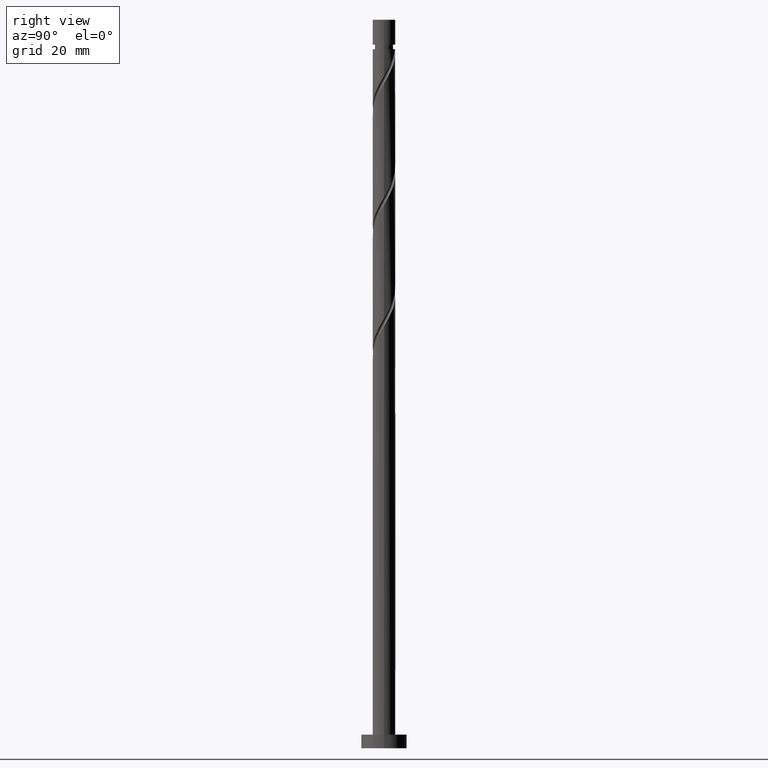
[diagram: clean part render]
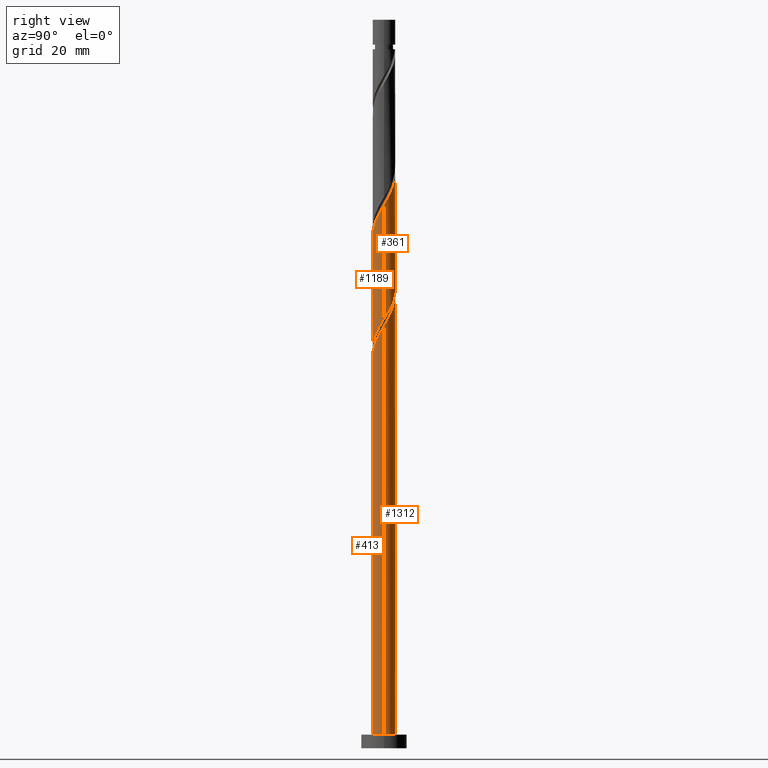
[diagram: same view with one multi-face feature highlighted, each face labeled with its STEP entity id]
A machine part, right view. The highlighted faces form ONE feature: a constant-radius fillet chain: 4 tangent blend faces with common blend radius 2.5 mm. The faces share edges in the B-rep.
Their STEP definitions:
[1] entity #361 (Cylinder):
#20 = CARTESIAN_POINT ( 'NONE',  ( 0.9060516544719215970, 2.330036566114083829, 124.4244054208200083 ) ) ;
#26 = LINE ( 'NONE', #1440, #511 ) ;
#82 = ORIENTED_EDGE ( 'NONE', *, *, #579, .F. ) ;
#108 = CARTESIAN_POINT ( 'NONE',  ( -1.525797355502942487, 1.980389464206529837, 103.8183448147593850 ) ) ;
#109 =( BOUNDED_CURVE ( )  B_SPLINE_CURVE ( 2, ( #530, #418, #1043, #177, #153, #277, #1210, #1049, #1078, #1591, #20, #650, #1565, #918, #795, #779, #1301, #1559, #452, #663, #926, #1066, #1441, #1317, #540 ),
 .UNSPECIFIED., .F., .T. ) 
 B_SPLINE_CURVE_WITH_KNOTS ( ( 3, 2, 2, 2, 2, 2, 2, 2, 2, 2, 2, 2, 3 ),
 ( 0.4295252162417508845, 0.4318181818181817677, 0.4431818181818182323, 0.4545454545454545858, 0.4659090909090909394, 0.4772727272727272929, 0.4886363636363636465, 0.5000000000000000000, 0.5113636363636363535, 0.5227272727272727071, 0.5340909090909091717, 0.5454545454545454142, 0.5545252162417514397 ),
 .UNSPECIFIED. ) 
 CURVE ( )  GEOMETRIC_REPRESENTATION_ITEM ( )  RATIONAL_B_SPLINE_CURVE ( ( 0.9061101570135661198, 0.9072237824201483392, 0.9090909090909261581, 0.8998376744372282854, 0.9090909090909261581, 0.8998376744372282854, 0.9090909090909261581, 0.8998376744372282854, 0.9090909090909261581, 0.8998376744372282854, 0.9090909090909261581, 0.8998376744372282854, 0.9090909090909261581, 0.8998376744372282854, 0.9090909090909261581, 0.8998376744372282854, 0.9090909090909261581, 0.8998376744372282854, 0.9090909090909261581, 0.8998376744372282854, 0.9090909090909261581, 0.8998376744372282854, 0.9090909090909261581, 0.9017048011080057712, 0.9061101570135666750 ) ) 
 REPRESENTATION_ITEM ( '' )  );
#134 = CARTESIAN_POINT ( 'NONE',  ( 2.435264748179749805, 0.5652305779706334743, 95.33349632991091482 ) ) ;
#140 = CARTESIAN_POINT ( 'NONE',  ( 0.8497505388409958282, 2.378471201873189500, 99.57592057233514993 ) ) ;
#153 = CARTESIAN_POINT ( 'NONE',  ( 2.354261794510399408, 0.8411013035946938166, 120.7880417844563254 ) ) ;
#177 = CARTESIAN_POINT ( 'NONE',  ( 2.475193905018193252, 0.5026095591624444303, 120.1819811783957732 ) ) ;
#226 = LINE ( 'NONE', #1497, #945 ) ;
#249 = CARTESIAN_POINT ( 'NONE',  ( 1.485422444420509969, 2.042724014156697798, 98.36379936021393178 ) ) ;
#259 = ORIENTED_EDGE ( 'NONE', *, *, #1263, .F. ) ;
#277 = CARTESIAN_POINT ( 'NONE',  ( 2.233329684002607785, 1.179593048026943647, 121.3941023905169772 ) ) ;
#348 = CARTESIAN_POINT ( 'NONE',  ( 0.000000000000000000, 0.000000000000000000, 160.0000000000000000 ) ) ;
#361 = ADVANCED_FACE ( 'NONE', ( #592 ), #960, .T. ) ;
#363 = CARTESIAN_POINT ( 'NONE',  ( 2.353996859965339361, 0.9153687888900159386, 95.93955693597150969 ) ) ;
#381 = CARTESIAN_POINT ( 'NONE',  ( -1.241060336893708760, 2.199766004962784738, 103.2122842086987902 ) ) ;
#418 = CARTESIAN_POINT ( 'NONE',  ( 2.500000000000003997, 0.07193881630954307438, 119.4546247038130531 ) ) ;
#428 = CARTESIAN_POINT ( 'NONE',  ( 2.500000000000000444, -3.155889168437744836E-15, 94.36476899103000449 ) ) ;
#452 = CARTESIAN_POINT ( 'NONE',  ( -1.743088351060510188, 1.792105744758709873, 129.2728902693048667 ) ) ;
#481 = CARTESIAN_POINT ( 'NONE',  ( 0.1452368982656260243, 2.521528798126809967, 100.7880417844563539 ) ) ;
#488 = CARTESIAN_POINT ( 'NONE',  ( -2.475193905018187035, 0.5026095591624444303, 106.8486478450624162 ) ) ;
#505 = CARTESIAN_POINT ( 'NONE',  ( 2.499999999999999556, 0.2863223184628082008, 94.85072894400131815 ) ) ;
#511 = VECTOR ( 'NONE', #1191, 1000.000000000000000 ) ;
#527 = CARTESIAN_POINT ( 'NONE',  ( -2.500000000000003997, -1.936908281102772785E-15, 132.6658600324281849 ) ) ;
#528 = EDGE_CURVE ( 'NONE', #1176, #1611, #1142, .T. ) ;
#530 = CARTESIAN_POINT ( 'NONE',  ( 2.500000000000003997, 1.839688946530046523E-15, 119.3325266990948705 ) ) ;
#540 = CARTESIAN_POINT ( 'NONE',  ( -2.500000000000004441, -1.936908281102772785E-15, 132.6658600324281849 ) ) ;
#579 = EDGE_CURVE ( 'NONE', #1287, #1031, #109, .T. ) ;
#592 = FACE_OUTER_BOUND ( 'NONE', #613, .T. ) ;
#613 = EDGE_LOOP ( 'NONE', ( #82, #769, #774, #259 ) ) ;
#618 = AXIS2_PLACEMENT_3D ( 'NONE', #348, #1362, #1253 ) ;
#650 = CARTESIAN_POINT ( 'NONE',  ( 0.5710429720501333239, 2.460307127265380256, 125.0304660268806174 ) ) ;
#663 = CARTESIAN_POINT ( 'NONE',  ( -2.000754257700509076, 1.541487475360719062, 129.8789508753654331 ) ) ;
#743 = CARTESIAN_POINT ( 'NONE',  ( -2.354261794510395411, 0.8411013035946935945, 106.2425872390018071 ) ) ;
#753 = CARTESIAN_POINT ( 'NONE',  ( 1.743088351060507524, 1.792105744758707209, 97.75773875415333691 ) ) ;
#764 = CARTESIAN_POINT ( 'NONE',  ( -0.5710429720501314366, 2.460307127265375371, 102.0001629965775578 ) ) ;
#769 = ORIENTED_EDGE ( 'NONE', *, *, #780, .T. ) ;
#771 = CARTESIAN_POINT ( 'NONE',  ( 2.500000000000003997, 1.839688946530046523E-15, 119.3325266990948705 ) ) ;
#772 = CARTESIAN_POINT ( 'NONE',  ( -2.500000000000000000, 9.587322070941203532E-15, 107.6981023243632904 ) ) ;
#774 = ORIENTED_EDGE ( 'NONE', *, *, #528, .F. ) ;
#779 = CARTESIAN_POINT ( 'NONE',  ( -0.8497505388409964944, 2.378471201873193941, 127.4547084511230537 ) ) ;
#780 = EDGE_CURVE ( 'NONE', #1287, #1611, #226, .T. ) ;
#795 = CARTESIAN_POINT ( 'NONE',  ( -0.4974937185533103712, 2.450000000000004174, 126.8486478450624162 ) ) ;
#902 = CARTESIAN_POINT ( 'NONE',  ( -2.500000000000000000, 9.587322070941203532E-15, 107.6981023243632904 ) ) ;
#918 = CARTESIAN_POINT ( 'NONE',  ( -0.1452368982656254692, 2.521528798126813964, 126.2425872390018355 ) ) ;
#926 = CARTESIAN_POINT ( 'NONE',  ( -2.177375558832925773, 1.228428132125368943, 130.4850114814260564 ) ) ;
#945 = VECTOR ( 'NONE', #1248, 1000.000000000000000 ) ;
#960 = CYLINDRICAL_SURFACE ( 'NONE', #618, 2.500000000000000000 ) ;
#1001 = CARTESIAN_POINT ( 'NONE',  ( 1.167586491630752343, 2.210597608014944093, 98.96985996627454085 ) ) ;
#1010 = CARTESIAN_POINT ( 'NONE',  ( -0.9060516544719198206, 2.330036566114079832, 102.6062236026381669 ) ) ;
#1028 = CARTESIAN_POINT ( 'NONE',  ( 2.500000000000000444, -3.155889168437744836E-15, 94.36476899103000449 ) ) ;
#1031 = VERTEX_POINT ( 'NONE', #527 ) ;
#1037 = CARTESIAN_POINT ( 'NONE',  ( -0.2129030368922528726, 2.490917962696093113, 101.3941023905169487 ) ) ;
#1043 = CARTESIAN_POINT ( 'NONE',  ( 2.495863270706177861, 0.1437585960555959053, 119.5759205723351641 ) ) ;
#1049 = CARTESIAN_POINT ( 'NONE',  ( 1.810534374112180656, 1.761012923450276935, 122.6062236026381953 ) ) ;
#1066 = CARTESIAN_POINT ( 'NONE',  ( -2.353996859965342914, 0.9153687888900196024, 131.0910720874867081 ) ) ;
#1078 = CARTESIAN_POINT ( 'NONE',  ( 1.525797355502944930, 1.980389464206532946, 123.2122842086987760 ) ) ;
#1142 =( BOUNDED_CURVE ( )  B_SPLINE_CURVE ( 2, ( #772, #1296, #1655, #488, #743, #1262, #1663, #1534, #108, #381, #1010, #764, #1037, #481, #1170, #140, #1001, #249, #753, #1289, #1518, #363, #134, #505, #1028 ),
 .UNSPECIFIED., .F., .T. ) 
 B_SPLINE_CURVE_WITH_KNOTS ( ( 3, 2, 2, 2, 2, 2, 2, 2, 2, 2, 2, 2, 3 ),
 ( 0.6795252162417515507, 0.6818181818181817677, 0.6931818181818182323, 0.7045454545454545858, 0.7159090909090909394, 0.7272727272727272929, 0.7386363636363636465, 0.7500000000000000000, 0.7613636363636363535, 0.7727272727272727071, 0.7840909090909090606, 0.7954545454545454142, 0.8045252162417512176 ),
 .UNSPECIFIED. ) 
 CURVE ( )  GEOMETRIC_REPRESENTATION_ITEM ( )  RATIONAL_B_SPLINE_CURVE ( ( 0.9061101570135603467, 0.9072237824201423440, 0.9090909090909196077, 0.8998376744372220681, 0.9090909090909196077, 0.8998376744372220681, 0.9090909090909196077, 0.8998376744372220681, 0.9090909090909196077, 0.8998376744372220681, 0.9090909090909196077, 0.8998376744372220681, 0.9090909090909196077, 0.8998376744372220681, 0.9090909090909196077, 0.8998376744372220681, 0.9090909090909196077, 0.8998376744372220681, 0.9090909090909196077, 0.8998376744372220681, 0.9090909090909196077, 0.8998376744372220681, 0.9090909090909196077, 0.9017048011079995540, 0.9061101570135599026 ) ) 
 REPRESENTATION_ITEM ( '' )  );
#1170 = CARTESIAN_POINT ( 'NONE',  ( 0.4974937185533113704, 2.449999999999999289, 100.1819811783957590 ) ) ;
#1176 = VERTEX_POINT ( 'NONE', #902 ) ;
#1191 = DIRECTION ( 'NONE',  ( -0.000000000000000000, -0.000000000000000000, -1.000000000000000000 ) ) ;
#1210 = CARTESIAN_POINT ( 'NONE',  ( 2.021932029057393887, 1.470302985738609847, 122.0001629965775862 ) ) ;
#1248 = DIRECTION ( 'NONE',  ( -0.000000000000000000, -0.000000000000000000, -1.000000000000000000 ) ) ;
#1253 = DIRECTION ( 'NONE',  ( -1.000000000000000000, 0.000000000000000000, 0.000000000000000000 ) ) ;
#1262 = CARTESIAN_POINT ( 'NONE',  ( -2.233329684002602900, 1.179593048026942315, 105.6365266329411980 ) ) ;
#1263 = EDGE_CURVE ( 'NONE', #1031, #1176, #26, .T. ) ;
#1287 = VERTEX_POINT ( 'NONE', #771 ) ;
#1289 = CARTESIAN_POINT ( 'NONE',  ( 2.000754257700505523, 1.541487475360715953, 97.15167814809272784 ) ) ;
#1296 = CARTESIAN_POINT ( 'NONE',  ( -2.500000000000000444, 0.07193881630956475148, 107.5760043196450795 ) ) ;
#1301 = CARTESIAN_POINT ( 'NONE',  ( -1.167586491630753898, 2.210597608014947646, 128.0607690571836486 ) ) ;
#1317 = CARTESIAN_POINT ( 'NONE',  ( -2.500000000000004885, 0.2863223184628060358, 132.1799000794568997 ) ) ;
#1362 = DIRECTION ( 'NONE',  ( -0.000000000000000000, -0.000000000000000000, -1.000000000000000000 ) ) ;
#1440 = CARTESIAN_POINT ( 'NONE',  ( -2.500000000000000000, 0.000000000000000000, 160.0000000000000000 ) ) ;
#1441 = CARTESIAN_POINT ( 'NONE',  ( -2.435264748179753802, 0.5652305779706361388, 131.6971326935473030 ) ) ;
#1497 = CARTESIAN_POINT ( 'NONE',  ( 2.500000000000000000, 3.061616997868383141E-16, 160.0000000000000000 ) ) ;
#1518 = CARTESIAN_POINT ( 'NONE',  ( 2.177375558832922664, 1.228428132125367167, 96.54561754203211876 ) ) ;
#1534 = CARTESIAN_POINT ( 'NONE',  ( -1.810534374112176215, 1.761012923450275158, 104.4244054208199799 ) ) ;
#1559 = CARTESIAN_POINT ( 'NONE',  ( -1.485422444420511967, 2.042724014156701795, 128.6668296632442434 ) ) ;
#1565 = CARTESIAN_POINT ( 'NONE',  ( 0.2129030368922538718, 2.490917962696097554, 125.6365266329412549 ) ) ;
#1591 = CARTESIAN_POINT ( 'NONE',  ( 1.241060336893710536, 2.199766004962788735, 123.8183448147594277 ) ) ;
#1611 = VERTEX_POINT ( 'NONE', #428 ) ;
#1655 = CARTESIAN_POINT ( 'NONE',  ( -2.495863270706175197, 0.1437585960555966269, 107.4547084511230395 ) ) ;
#1663 = CARTESIAN_POINT ( 'NONE',  ( -2.021932029057389446, 1.470302985738609181, 105.0304660268806174 ) ) ;
[2] entity #1189 (Cylinder):
#5 = DIRECTION ( 'NONE',  ( -0.000000000000000000, -0.000000000000000000, -1.000000000000000000 ) ) ;
#18 = ORIENTED_EDGE ( 'NONE', *, *, #559, .F. ) ;
#27 = CARTESIAN_POINT ( 'NONE',  ( 1.525797355502942043, -1.980389464206530725, 90.48501148142602801 ) ) ;
#52 = CARTESIAN_POINT ( 'NONE',  ( -1.485422444420509747, -2.042724014156697798, 85.03046602688057476 ) ) ;
#71 = CARTESIAN_POINT ( 'NONE',  ( -1.525797355502945374, -1.980389464206532057, 109.8789508753654474 ) ) ;
#80 = EDGE_CURVE ( 'NONE', #1025, #173, #1343, .T. ) ;
#81 = CARTESIAN_POINT ( 'NONE',  ( 2.435264748179753802, -0.5652305779706356947, 118.3637993602139176 ) ) ;
#147 = CARTESIAN_POINT ( 'NONE',  ( -2.000754257700505967, -1.541487475360715065, 83.81834481475938503 ) ) ;
#166 = CARTESIAN_POINT ( 'NONE',  ( 0.8497505388409959393, -2.378471201873194385, 114.1213751177896967 ) ) ;
#173 = VERTEX_POINT ( 'NONE', #1185 ) ;
#176 = CARTESIAN_POINT ( 'NONE',  ( 1.167586491630753454, -2.210597608014948090, 114.7274357238502915 ) ) ;
#178 = DIRECTION ( 'NONE',  ( -0.000000000000000000, -0.000000000000000000, -1.000000000000000000 ) ) ;
#184 = CARTESIAN_POINT ( 'NONE',  ( -2.021932029057393443, -1.470302985738610513, 108.6668296632442576 ) ) ;
#192 = CARTESIAN_POINT ( 'NONE',  ( 2.000754257700509076, -1.541487475360719284, 116.5456175420321472 ) ) ;
#226 = LINE ( 'NONE', #1497, #945 ) ;
#240 = CARTESIAN_POINT ( 'NONE',  ( 2.500000000000000444, -0.07193881630955473172, 94.24267098631177930 ) ) ;
#267 = CYLINDRICAL_SURFACE ( 'NONE', #725, 2.500000000000000000 ) ;
#268 = CARTESIAN_POINT ( 'NONE',  ( 2.021932029057389890, -1.470302985738608958, 91.69713269354726037 ) ) ;
#273 = CARTESIAN_POINT ( 'NONE',  ( -2.500000000000003553, 5.055405397781753783E-15, 105.9991933657615135 ) ) ;
#283 = CARTESIAN_POINT ( 'NONE',  ( -2.435264748179750693, -0.5652305779706341404, 82.00016299657757202 ) ) ;
#302 = CARTESIAN_POINT ( 'NONE',  ( -0.4974937185533109263, -2.449999999999999289, 86.84864784506241620 ) ) ;
#311 = CARTESIAN_POINT ( 'NONE',  ( -2.233329684002606896, -1.179593048026944091, 108.0607690571836343 ) ) ;
#404 = CARTESIAN_POINT ( 'NONE',  ( 2.233329684002602900, -1.179593048026942315, 92.30319329960784103 ) ) ;
#412 = CARTESIAN_POINT ( 'NONE',  ( -2.353996859965338917, -0.9153687888900170488, 82.60622360263816688 ) ) ;
#417 = CARTESIAN_POINT ( 'NONE',  ( 0.4974937185533107042, -2.450000000000004174, 113.5153145117290876 ) ) ;
#428 = CARTESIAN_POINT ( 'NONE',  ( 2.500000000000000444, -3.155889168437744836E-15, 94.36476899103000449 ) ) ;
#436 = CARTESIAN_POINT ( 'NONE',  ( -0.5710429720501328799, -2.460307127265380256, 111.6971326935473030 ) ) ;
#445 = CARTESIAN_POINT ( 'NONE',  ( -2.495863270706177861, -0.1437585960555961828, 106.2425872390018213 ) ) ;
#502 =( BOUNDED_CURVE ( )  B_SPLINE_CURVE ( 2, ( #1332, #948, #445, #1065, #698, #311, #184, #1610, #71, #941, #708, #436, #555, #1573, #417, #166, #176, #1096, #1471, #192, #824, #1446, #81, #1056, #1225 ),
 .UNSPECIFIED., .F., .T. ) 
 B_SPLINE_CURVE_WITH_KNOTS ( ( 3, 2, 2, 2, 2, 2, 2, 2, 2, 2, 2, 2, 3 ),
 ( 0.3045252162417511066, 0.3068181818181817677, 0.3181818181818182323, 0.3295454545454545858, 0.3409090909090909394, 0.3522727272727272929, 0.3636363636363636465, 0.3750000000000000000, 0.3863636363636363535, 0.3977272727272727071, 0.4090909090909090606, 0.4204545454545454142, 0.4295252162417508845 ),
 .UNSPECIFIED. ) 
 CURVE ( )  GEOMETRIC_REPRESENTATION_ITEM ( )  RATIONAL_B_SPLINE_CURVE ( ( 0.9061101570135662309, 0.9072237824201484502, 0.9090909090909261581, 0.8998376744372282854, 0.9090909090909261581, 0.8998376744372282854, 0.9090909090909261581, 0.8998376744372282854, 0.9090909090909261581, 0.8998376744372282854, 0.9090909090909261581, 0.8998376744372282854, 0.9090909090909261581, 0.8998376744372282854, 0.9090909090909261581, 0.8998376744372282854, 0.9090909090909261581, 0.8998376744372282854, 0.9090909090909261581, 0.8998376744372282854, 0.9090909090909261581, 0.8998376744372282854, 0.9090909090909261581, 0.9017048011080062153, 0.9061101570135661198 ) ) 
 REPRESENTATION_ITEM ( '' )  );
#524 = CARTESIAN_POINT ( 'NONE',  ( 0.9060516544719198206, -2.330036566114079832, 89.27289026930483828 ) ) ;
#555 = CARTESIAN_POINT ( 'NONE',  ( -0.2129030368922535665, -2.490917962696097554, 112.3031932996078694 ) ) ;
#556 = CARTESIAN_POINT ( 'NONE',  ( 1.810534374112177547, -1.761012923450274714, 91.09107208748666551 ) ) ;
#559 = EDGE_CURVE ( 'NONE', #1611, #173, #951, .T. ) ;
#655 = CARTESIAN_POINT ( 'NONE',  ( 0.000000000000000000, 0.000000000000000000, 160.0000000000000000 ) ) ;
#656 = CARTESIAN_POINT ( 'NONE',  ( 2.354261794510395411, -0.8411013035946938166, 92.90925390566849273 ) ) ;
#665 = ORIENTED_EDGE ( 'NONE', *, *, #780, .F. ) ;
#681 = CARTESIAN_POINT ( 'NONE',  ( 2.475193905018187035, -0.5026095591624447634, 93.51531451172905918 ) ) ;
#698 = CARTESIAN_POINT ( 'NONE',  ( -2.354261794510399408, -0.8411013035946942606, 107.4547084511230537 ) ) ;
#708 = CARTESIAN_POINT ( 'NONE',  ( -0.9060516544719224852, -2.330036566114084273, 111.0910720874866797 ) ) ;
#725 = AXIS2_PLACEMENT_3D ( 'NONE', #655, #5, #788 ) ;
#771 = CARTESIAN_POINT ( 'NONE',  ( 2.500000000000003997, 1.839688946530046523E-15, 119.3325266990948705 ) ) ;
#780 = EDGE_CURVE ( 'NONE', #1287, #1611, #226, .T. ) ;
#788 = DIRECTION ( 'NONE',  ( -1.000000000000000000, 0.000000000000000000, 0.000000000000000000 ) ) ;
#789 = CARTESIAN_POINT ( 'NONE',  ( -0.8497505388409954952, -2.378471201873189500, 86.24258723900180712 ) ) ;
#814 = CARTESIAN_POINT ( 'NONE',  ( -1.167586491630751899, -2.210597608014944093, 85.63652663294122647 ) ) ;
#824 = CARTESIAN_POINT ( 'NONE',  ( 2.177375558832925329, -1.228428132125369387, 117.1516781480927563 ) ) ;
#933 = CARTESIAN_POINT ( 'NONE',  ( 2.495863270706175197, -0.1437585960555969600, 94.12137511778972510 ) ) ;
#941 = CARTESIAN_POINT ( 'NONE',  ( -1.241060336893711646, -2.199766004962788291, 110.4850114814260706 ) ) ;
#945 = VECTOR ( 'NONE', #1248, 1000.000000000000000 ) ;
#948 = CARTESIAN_POINT ( 'NONE',  ( -2.500000000000003997, -0.07193881630955022144, 106.1212913704797387 ) ) ;
#951 =( BOUNDED_CURVE ( )  B_SPLINE_CURVE ( 2, ( #1398, #240, #933, #681, #656, #404, #268, #556, #27, #1574, #524, #1455, #1310, #1433, #302, #789, #814, #52, #1178, #147, #1184, #412, #283, #1447, #1333 ),
 .UNSPECIFIED., .F., .T. ) 
 B_SPLINE_CURVE_WITH_KNOTS ( ( 3, 2, 2, 2, 2, 2, 2, 2, 2, 2, 2, 2, 3 ),
 ( 0.8045252162417512176, 0.8068181818181817677, 0.8181818181818182323, 0.8295454545454545858, 0.8409090909090909394, 0.8522727272727272929, 0.8636363636363636465, 0.8750000000000000000, 0.8863636363636363535, 0.8977272727272727071, 0.9090909090909090606, 0.9204545454545454142, 0.9295252162417513286 ),
 .UNSPECIFIED. ) 
 CURVE ( )  GEOMETRIC_REPRESENTATION_ITEM ( )  RATIONAL_B_SPLINE_CURVE ( ( 0.9061101570135599026, 0.9072237824201421219, 0.9090909090909196077, 0.8998376744372220681, 0.9090909090909196077, 0.8998376744372220681, 0.9090909090909196077, 0.8998376744372220681, 0.9090909090909196077, 0.8998376744372220681, 0.9090909090909196077, 0.8998376744372220681, 0.9090909090909196077, 0.8998376744372220681, 0.9090909090909196077, 0.8998376744372220681, 0.9090909090909196077, 0.8998376744372220681, 0.9090909090909196077, 0.8998376744372220681, 0.9090909090909196077, 0.8998376744372220681, 0.9090909090909196077, 0.9017048011079995540, 0.9061101570135600136 ) ) 
 REPRESENTATION_ITEM ( '' )  );
#1025 = VERTEX_POINT ( 'NONE', #273 ) ;
#1034 = VECTOR ( 'NONE', #178, 1000.000000000000000 ) ;
#1056 = CARTESIAN_POINT ( 'NONE',  ( 2.500000000000001332, -0.2863223184628203022, 118.8465667461235427 ) ) ;
#1065 = CARTESIAN_POINT ( 'NONE',  ( -2.475193905018193252, -0.5026095591624447634, 106.8486478450624304 ) ) ;
#1096 = CARTESIAN_POINT ( 'NONE',  ( 1.485422444420512189, -2.042724014156701795, 115.3334963299109006 ) ) ;
#1169 = FACE_OUTER_BOUND ( 'NONE', #1336, .T. ) ;
#1178 = CARTESIAN_POINT ( 'NONE',  ( -1.743088351060508412, -1.792105744758706987, 84.42440542081999411 ) ) ;
#1184 = CARTESIAN_POINT ( 'NONE',  ( -2.177375558832922664, -1.228428132125366723, 83.21228420869877596 ) ) ;
#1185 = CARTESIAN_POINT ( 'NONE',  ( -2.500000000000000444, 2.624922033463622086E-15, 81.03143565769663326 ) ) ;
#1189 = ADVANCED_FACE ( 'NONE', ( #1169 ), #267, .T. ) ;
#1225 = CARTESIAN_POINT ( 'NONE',  ( 2.500000000000003997, 1.839688946530046523E-15, 119.3325266990948705 ) ) ;
#1248 = DIRECTION ( 'NONE',  ( -0.000000000000000000, -0.000000000000000000, -1.000000000000000000 ) ) ;
#1258 = ORIENTED_EDGE ( 'NONE', *, *, #80, .T. ) ;
#1287 = VERTEX_POINT ( 'NONE', #771 ) ;
#1310 = CARTESIAN_POINT ( 'NONE',  ( 0.2129030368922521788, -2.490917962696093113, 88.06076905718363435 ) ) ;
#1332 = CARTESIAN_POINT ( 'NONE',  ( -2.500000000000003553, 5.055405397781753783E-15, 105.9991933657615135 ) ) ;
#1333 = CARTESIAN_POINT ( 'NONE',  ( -2.500000000000000444, 2.624922033463622086E-15, 81.03143565769663326 ) ) ;
#1334 = CARTESIAN_POINT ( 'NONE',  ( -2.500000000000000000, 0.000000000000000000, 160.0000000000000000 ) ) ;
#1336 = EDGE_LOOP ( 'NONE', ( #665, #1540, #1258, #18 ) ) ;
#1343 = LINE ( 'NONE', #1334, #1034 ) ;
#1389 = EDGE_CURVE ( 'NONE', #1025, #1287, #502, .T. ) ;
#1398 = CARTESIAN_POINT ( 'NONE',  ( 2.500000000000000444, -3.155889168437744836E-15, 94.36476899103000449 ) ) ;
#1433 = CARTESIAN_POINT ( 'NONE',  ( -0.1452368982656266350, -2.521528798126810411, 87.45470845112302527 ) ) ;
#1446 = CARTESIAN_POINT ( 'NONE',  ( 2.353996859965343802, -0.9153687888900189362, 117.7577387541533369 ) ) ;
#1447 = CARTESIAN_POINT ( 'NONE',  ( -2.500000000000000444, -0.2863223184628054807, 81.51739561066791850 ) ) ;
#1455 = CARTESIAN_POINT ( 'NONE',  ( 0.5710429720501321027, -2.460307127265375371, 88.66682966324422921 ) ) ;
#1471 = CARTESIAN_POINT ( 'NONE',  ( 1.743088351060510188, -1.792105744758709873, 115.9395569359715097 ) ) ;
#1497 = CARTESIAN_POINT ( 'NONE',  ( 2.500000000000000000, 3.061616997868383141E-16, 160.0000000000000000 ) ) ;
#1540 = ORIENTED_EDGE ( 'NONE', *, *, #1389, .F. ) ;
#1573 = CARTESIAN_POINT ( 'NONE',  ( 0.1452368982656257745, -2.521528798126813964, 112.9092539056684927 ) ) ;
#1574 = CARTESIAN_POINT ( 'NONE',  ( 1.241060336893708538, -2.199766004962784738, 89.87895087536546157 ) ) ;
#1610 = CARTESIAN_POINT ( 'NONE',  ( -1.810534374112179989, -1.761012923450278045, 109.2728902693048667 ) ) ;
#1611 = VERTEX_POINT ( 'NONE', #428 ) ;
[3] entity #1312 (Cylinder):
#6 = CARTESIAN_POINT ( 'NONE',  ( 0.5710429720501333239, 2.460307127265380256, 98.36379936021398862 ) ) ;
#11 = ORIENTED_EDGE ( 'NONE', *, *, #868, .T. ) ;
#13 = CARTESIAN_POINT ( 'NONE',  ( -1.743088351060510188, 1.792105744758709873, 102.6062236026382095 ) ) ;
#36 = AXIS2_PLACEMENT_3D ( 'NONE', #917, #152, #1533 ) ;
#49 = VERTEX_POINT ( 'NONE', #1602 ) ;
#80 = EDGE_CURVE ( 'NONE', #1025, #173, #1343, .T. ) ;
#87 = CARTESIAN_POINT ( 'NONE',  ( -2.000754257700509076, 1.541487475360719062, 76.54561754203214718 ) ) ;
#93 = AXIS2_PLACEMENT_3D ( 'NONE', #1545, #1154, #1019 ) ;
#97 = ORIENTED_EDGE ( 'NONE', *, *, #506, .F. ) ;
#116 = CARTESIAN_POINT ( 'NONE',  ( 0.2129030368922538718, 2.490917962696097554, 98.96985996627456927 ) ) ;
#127 = CARTESIAN_POINT ( 'NONE',  ( -2.435264748179753802, 0.5652305779706361388, 105.0304660268806174 ) ) ;
#152 = DIRECTION ( 'NONE',  ( -0.000000000000000000, -0.000000000000000000, -1.000000000000000000 ) ) ;
#173 = VERTEX_POINT ( 'NONE', #1185 ) ;
#178 = DIRECTION ( 'NONE',  ( -0.000000000000000000, -0.000000000000000000, -1.000000000000000000 ) ) ;
#195 = CARTESIAN_POINT ( 'NONE',  ( -2.495863270706175197, 0.1437585960555966269, 80.78804178445635387 ) ) ;
#208 = CARTESIAN_POINT ( 'NONE',  ( -1.485422444420511967, 2.042724014156701795, 75.33349632991094325 ) ) ;
#209 = VERTEX_POINT ( 'NONE', #1302 ) ;
#228 = ORIENTED_EDGE ( 'NONE', *, *, #476, .T. ) ;
#231 = CARTESIAN_POINT ( 'NONE',  ( -0.5710429720501314366, 2.460307127265375371, 75.33349632991088640 ) ) ;
#261 = CARTESIAN_POINT ( 'NONE',  ( -0.8497505388409964944, 2.378471201873193941, 100.7880417844563681 ) ) ;
#269 = EDGE_CURVE ( 'NONE', #274, #1198, #1482, .T. ) ;
#273 = CARTESIAN_POINT ( 'NONE',  ( -2.500000000000003553, 5.055405397781753783E-15, 105.9991933657615135 ) ) ;
#274 = VERTEX_POINT ( 'NONE', #985 ) ;
#296 = ORIENTED_EDGE ( 'NONE', *, *, #80, .F. ) ;
#352 = CARTESIAN_POINT ( 'NONE',  ( -1.167586491630753898, 2.210597608014947646, 74.72743572385030575 ) ) ;
#371 = CARTESIAN_POINT ( 'NONE',  ( 2.495863270706177861, 0.1437585960555959053, 92.90925390566846431 ) ) ;
#388 = CARTESIAN_POINT ( 'NONE',  ( -1.167586491630753898, 2.210597608014947646, 101.3941023905169487 ) ) ;
#398 = CARTESIAN_POINT ( 'NONE',  ( -2.000754257700509076, 1.541487475360719062, 103.2122842086988470 ) ) ;
#403 = CARTESIAN_POINT ( 'NONE',  ( -2.500000000000000000, 0.000000000000000000, 3.000000000000000000 ) ) ;
#426 = CARTESIAN_POINT ( 'NONE',  ( 2.500000000000000000, 3.061616997868383141E-16, 160.0000000000000000 ) ) ;
#448 = CARTESIAN_POINT ( 'NONE',  ( -1.810534374112176215, 1.761012923450275158, 77.75773875415330849 ) ) ;
#456 = EDGE_CURVE ( 'NONE', #173, #209, #1069, .T. ) ;
#476 = EDGE_CURVE ( 'NONE', #1431, #1198, #1171, .T. ) ;
#477 = ORIENTED_EDGE ( 'NONE', *, *, #269, .F. ) ;
#496 = CARTESIAN_POINT ( 'NONE',  ( 2.354261794510399408, 0.8411013035946938166, 94.12137511778972510 ) ) ;
#504 = CYLINDRICAL_SURFACE ( 'NONE', #36, 2.500000000000000000 ) ;
#506 = EDGE_CURVE ( 'NONE', #49, #1025, #1250, .T. ) ;
#517 = ORIENTED_EDGE ( 'NONE', *, *, #456, .F. ) ;
#539 = FACE_OUTER_BOUND ( 'NONE', #1548, .T. ) ;
#551 = CARTESIAN_POINT ( 'NONE',  ( -2.500000000000003997, 0.2863223184628101992, 78.84656674612359950 ) ) ;
#575 = CARTESIAN_POINT ( 'NONE',  ( -2.354261794510395411, 0.8411013035946935945, 79.57592057233513572 ) ) ;
#588 = DIRECTION ( 'NONE',  ( -1.000000000000000000, 0.000000000000000000, 0.000000000000000000 ) ) ;
#597 = CARTESIAN_POINT ( 'NONE',  ( 0.000000000000000000, 0.000000000000000000, 73.51531451172910181 ) ) ;
#608 = CARTESIAN_POINT ( 'NONE',  ( -0.4974937185533103712, 2.450000000000004174, 100.1819811783957590 ) ) ;
#616 = CARTESIAN_POINT ( 'NONE',  ( 1.525797355502944930, 1.980389464206532946, 96.54561754203213297 ) ) ;
#626 = CARTESIAN_POINT ( 'NONE',  ( 1.241060336893710536, 2.199766004962788735, 97.15167814809274205 ) ) ;
#634 = CARTESIAN_POINT ( 'NONE',  ( 2.500000000000003997, 1.839688946530046523E-15, 92.66586003242819913 ) ) ;
#642 = CARTESIAN_POINT ( 'NONE',  ( -1.241060336893708760, 2.199766004962784738, 76.54561754203211876 ) ) ;
#702 = CARTESIAN_POINT ( 'NONE',  ( -2.475193905018187035, 0.5026095591624444303, 80.18198117839573058 ) ) ;
#704 = EDGE_CURVE ( 'NONE', #1642, #209, #999, .T. ) ;
#714 = CARTESIAN_POINT ( 'NONE',  ( -1.743088351060510188, 1.792105744758709873, 75.93955693597150969 ) ) ;
#736 = CARTESIAN_POINT ( 'NONE',  ( -2.500000000000003109, 0.2863223184628136408, 105.5132334127901998 ) ) ;
#802 = CARTESIAN_POINT ( 'NONE',  ( 2.500000000000000000, 3.061616997868383141E-16, 3.000000000000000000 ) ) ;
#810 = EDGE_CURVE ( 'NONE', #1642, #274, #1303, .T. ) ;
#835 = CARTESIAN_POINT ( 'NONE',  ( -2.500000000000000444, 2.624922033463622086E-15, 81.03143565769663326 ) ) ;
#846 = CARTESIAN_POINT ( 'NONE',  ( -2.500000000000000000, 0.000000000000000000, 160.0000000000000000 ) ) ;
#853 = DIRECTION ( 'NONE',  ( -0.000000000000000000, -0.000000000000000000, -1.000000000000000000 ) ) ;
#866 = CARTESIAN_POINT ( 'NONE',  ( -2.353996859965342914, 0.9153687888900196024, 77.75773875415335112 ) ) ;
#868 = EDGE_CURVE ( 'NONE', #49, #1431, #1188, .T. ) ;
#886 = CARTESIAN_POINT ( 'NONE',  ( 0.9060516544719215970, 2.330036566114083829, 97.75773875415332270 ) ) ;
#895 = CARTESIAN_POINT ( 'NONE',  ( -0.9060516544719198206, 2.330036566114079832, 75.93955693597150969 ) ) ;
#903 = CARTESIAN_POINT ( 'NONE',  ( -2.177375558832925773, 1.228428132125368943, 103.8183448147593708 ) ) ;
#910 = CARTESIAN_POINT ( 'NONE',  ( -2.353996859965342914, 0.9153687888900196024, 104.4244054208200083 ) ) ;
#917 = CARTESIAN_POINT ( 'NONE',  ( 0.000000000000000000, 0.000000000000000000, 160.0000000000000000 ) ) ;
#968 = CARTESIAN_POINT ( 'NONE',  ( -1.525797355502942487, 1.980389464206529837, 77.15167814809269942 ) ) ;
#985 = CARTESIAN_POINT ( 'NONE',  ( -2.500000000000003553, 5.055405397781753783E-15, 79.33252669909487054 ) ) ;
#990 = CARTESIAN_POINT ( 'NONE',  ( -0.4974937185533103712, 2.450000000000003730, 73.51531451172908760 ) ) ;
#999 = CIRCLE ( 'NONE', #1542, 2.500000000000000000 ) ;
#1019 = DIRECTION ( 'NONE',  ( 1.000000000000000000, 0.000000000000000000, 0.000000000000000000 ) ) ;
#1025 = VERTEX_POINT ( 'NONE', #273 ) ;
#1034 = VECTOR ( 'NONE', #178, 1000.000000000000000 ) ;
#1069 =( BOUNDED_CURVE ( )  B_SPLINE_CURVE ( 2, ( #835, #1353, #195, #702, #575, #1099, #1613, #448, #968, #642, #895, #231, #1526, #1280, #1414 ),
 .UNSPECIFIED., .F., .T. ) 
 B_SPLINE_CURVE_WITH_KNOTS ( ( 3, 2, 2, 2, 2, 2, 2, 3 ),
 ( 0.9295252162417513286, 0.9318181818181817677, 0.9431818181818182323, 0.9545454545454545858, 0.9659090909090909394, 0.9772727272727272929, 0.9886363636363636465, 1.000000000000000000 ),
 .UNSPECIFIED. ) 
 CURVE ( )  GEOMETRIC_REPRESENTATION_ITEM ( )  RATIONAL_B_SPLINE_CURVE ( ( 0.9061101570135600136, 0.9072237824201421219, 0.9090909090909196077, 0.8998376744372220681, 0.9090909090909196077, 0.8998376744372220681, 0.9090909090909196077, 0.8998376744372220681, 0.9090909090909196077, 0.8998376744372220681, 0.9090909090909196077, 0.8998376744372220681, 0.9090909090909196077, 0.8998376744372220681, 0.9090909090909196077 ) ) 
 REPRESENTATION_ITEM ( '' )  );
#1099 = CARTESIAN_POINT ( 'NONE',  ( -2.233329684002602900, 1.179593048026942315, 78.96985996627455506 ) ) ;
#1110 = CARTESIAN_POINT ( 'NONE',  ( -2.435264748179753802, 0.5652305779706361388, 78.36379936021394599 ) ) ;
#1134 = CARTESIAN_POINT ( 'NONE',  ( -1.485422444420511967, 2.042724014156701795, 102.0001629965776146 ) ) ;
#1145 = CARTESIAN_POINT ( 'NONE',  ( -2.500000000000003553, 5.055405397781753783E-15, 105.9991933657615135 ) ) ;
#1154 = DIRECTION ( 'NONE',  ( 0.000000000000000000, 0.000000000000000000, 1.000000000000000000 ) ) ;
#1156 = ORIENTED_EDGE ( 'NONE', *, *, #704, .T. ) ;
#1162 = CARTESIAN_POINT ( 'NONE',  ( 2.500000000000004441, 0.07193881630955181739, 92.78795803714639590 ) ) ;
#1171 = CIRCLE ( 'NONE', #93, 2.500000000000000000 ) ;
#1181 = DIRECTION ( 'NONE',  ( -0.000000000000000000, -0.000000000000000000, -1.000000000000000000 ) ) ;
#1185 = CARTESIAN_POINT ( 'NONE',  ( -2.500000000000000444, 2.624922033463622086E-15, 81.03143565769663326 ) ) ;
#1188 = LINE ( 'NONE', #426, #1326 ) ;
#1194 = VECTOR ( 'NONE', #853, 1000.000000000000000 ) ;
#1198 = VERTEX_POINT ( 'NONE', #403 ) ;
#1239 = CARTESIAN_POINT ( 'NONE',  ( -2.177375558832925773, 1.228428132125368943, 77.15167814809271363 ) ) ;
#1250 =( BOUNDED_CURVE ( )  B_SPLINE_CURVE ( 2, ( #634, #1162, #371, #1270, #496, #1406, #1552, #1646, #616, #626, #886, #6, #116, #1421, #608, #261, #388, #1134, #13, #398, #903, #910, #127, #736, #1145 ),
 .UNSPECIFIED., .F., .T. ) 
 B_SPLINE_CURVE_WITH_KNOTS ( ( 3, 2, 2, 2, 2, 2, 2, 2, 2, 2, 2, 2, 3 ),
 ( 0.1795252162417511621, 0.1818181818181817677, 0.1931818181818182323, 0.2045454545454545858, 0.2159090909090909394, 0.2272727272727272929, 0.2386363636363636465, 0.2500000000000000000, 0.2613636363636363535, 0.2727272727272727071, 0.2840909090909090606, 0.2954545454545454142, 0.3045252162417511066 ),
 .UNSPECIFIED. ) 
 CURVE ( )  GEOMETRIC_REPRESENTATION_ITEM ( )  RATIONAL_B_SPLINE_CURVE ( ( 0.9061101570135663419, 0.9072237824201485612, 0.9090909090909261581, 0.8998376744372282854, 0.9090909090909261581, 0.8998376744372282854, 0.9090909090909261581, 0.8998376744372282854, 0.9090909090909261581, 0.8998376744372282854, 0.9090909090909261581, 0.8998376744372282854, 0.9090909090909261581, 0.8998376744372282854, 0.9090909090909261581, 0.8998376744372282854, 0.9090909090909261581, 0.8998376744372282854, 0.9090909090909261581, 0.8998376744372282854, 0.9090909090909261581, 0.8998376744372282854, 0.9090909090909261581, 0.9017048011080059933, 0.9061101570135662309 ) ) 
 REPRESENTATION_ITEM ( '' )  );
#1270 = CARTESIAN_POINT ( 'NONE',  ( 2.475193905018193252, 0.5026095591624444303, 93.51531451172911602 ) ) ;
#1280 = CARTESIAN_POINT ( 'NONE',  ( 0.1452368982656260243, 2.521528798126809967, 74.12137511778969667 ) ) ;
#1302 = CARTESIAN_POINT ( 'NONE',  ( 0.4974937185533112594, 2.449999999999999289, 73.51531451172908760 ) ) ;
#1303 =( BOUNDED_CURVE ( )  B_SPLINE_CURVE ( 2, ( #990, #1506, #352, #208, #714, #87, #1239, #866, #1110, #551, #1320 ),
 .UNSPECIFIED., .F., .T. ) 
 B_SPLINE_CURVE_WITH_KNOTS ( ( 3, 2, 2, 2, 2, 3 ),
 ( 0.000000000000000000, 0.01136363636363635354, 0.02272727272727270709, 0.03409090909090906063, 0.04545454545454541417, 0.05452521624175121762 ),
 .UNSPECIFIED. ) 
 CURVE ( )  GEOMETRIC_REPRESENTATION_ITEM ( )  RATIONAL_B_SPLINE_CURVE ( ( 0.9090909090909261581, 0.8998376744372282854, 0.9090909090909261581, 0.8998376744372282854, 0.9090909090909261581, 0.8998376744372282854, 0.9090909090909261581, 0.8998376744372282854, 0.9090909090909261581, 0.9017048011080058822, 0.9061101570135663419 ) ) 
 REPRESENTATION_ITEM ( '' )  );
#1312 = ADVANCED_FACE ( 'NONE', ( #539 ), #504, .T. ) ;
#1320 = CARTESIAN_POINT ( 'NONE',  ( -2.500000000000003553, 5.055405397781753783E-15, 79.33252669909487054 ) ) ;
#1326 = VECTOR ( 'NONE', #1181, 1000.000000000000000 ) ;
#1334 = CARTESIAN_POINT ( 'NONE',  ( -2.500000000000000000, 0.000000000000000000, 160.0000000000000000 ) ) ;
#1343 = LINE ( 'NONE', #1334, #1034 ) ;
#1353 = CARTESIAN_POINT ( 'NONE',  ( -2.500000000000000444, 0.07193881630955777096, 80.90933765297842228 ) ) ;
#1386 = DIRECTION ( 'NONE',  ( 0.000000000000000000, -0.000000000000000000, -1.000000000000000000 ) ) ;
#1406 = CARTESIAN_POINT ( 'NONE',  ( 2.233329684002607785, 1.179593048026943647, 94.72743572385036259 ) ) ;
#1414 = CARTESIAN_POINT ( 'NONE',  ( 0.4974937185533112594, 2.449999999999999289, 73.51531451172908760 ) ) ;
#1421 = CARTESIAN_POINT ( 'NONE',  ( -0.1452368982656254692, 2.521528798126813964, 99.57592057233514993 ) ) ;
#1431 = VERTEX_POINT ( 'NONE', #802 ) ;
#1482 = LINE ( 'NONE', #846, #1194 ) ;
#1489 = CARTESIAN_POINT ( 'NONE',  ( -0.4974937185533103712, 2.450000000000003730, 73.51531451172908760 ) ) ;
#1506 = CARTESIAN_POINT ( 'NONE',  ( -0.8497505388409964944, 2.378471201873193941, 74.12137511778972510 ) ) ;
#1523 = ORIENTED_EDGE ( 'NONE', *, *, #810, .F. ) ;
#1526 = CARTESIAN_POINT ( 'NONE',  ( -0.2129030368922528726, 2.490917962696093113, 74.72743572385031996 ) ) ;
#1533 = DIRECTION ( 'NONE',  ( -1.000000000000000000, 0.000000000000000000, 0.000000000000000000 ) ) ;
#1542 = AXIS2_PLACEMENT_3D ( 'NONE', #597, #1386, #588 ) ;
#1545 = CARTESIAN_POINT ( 'NONE',  ( 0.000000000000000000, 0.000000000000000000, 3.000000000000000000 ) ) ;
#1548 = EDGE_LOOP ( 'NONE', ( #97, #11, #228, #477, #1523, #1156, #517, #296 ) ) ;
#1552 = CARTESIAN_POINT ( 'NONE',  ( 2.021932029057393887, 1.470302985738609847, 95.33349632991091482 ) ) ;
#1602 = CARTESIAN_POINT ( 'NONE',  ( 2.500000000000003997, 1.839688946530046523E-15, 92.66586003242819913 ) ) ;
#1613 = CARTESIAN_POINT ( 'NONE',  ( -2.021932029057389446, 1.470302985738609181, 78.36379936021394599 ) ) ;
#1642 = VERTEX_POINT ( 'NONE', #1489 ) ;
#1646 = CARTESIAN_POINT ( 'NONE',  ( 1.810534374112180656, 1.761012923450276935, 95.93955693597153811 ) ) ;
[4] entity #413 (Cylinder):
#49 = VERTEX_POINT ( 'NONE', #1602 ) ;
#68 = CARTESIAN_POINT ( 'NONE',  ( -1.241060336893711646, -2.199766004962788291, 83.81834481475941345 ) ) ;
#94 = CARTESIAN_POINT ( 'NONE',  ( 1.167586491630753454, -2.210597608014948090, 88.06076905718363435 ) ) ;
#102 = FACE_OUTER_BOUND ( 'NONE', #1419, .T. ) ;
#188 = CARTESIAN_POINT ( 'NONE',  ( -2.475193905018193252, -0.5026095591624447634, 80.18198117839580163 ) ) ;
#215 = CARTESIAN_POINT ( 'NONE',  ( 1.485422444420512189, -2.042724014156701795, 88.66682966324430026 ) ) ;
#269 = EDGE_CURVE ( 'NONE', #274, #1198, #1482, .T. ) ;
#274 = VERTEX_POINT ( 'NONE', #985 ) ;
#297 = EDGE_CURVE ( 'NONE', #1198, #1431, #565, .T. ) ;
#322 = CARTESIAN_POINT ( 'NONE',  ( 2.435264748179753802, -0.5652305779706356947, 91.69713269354724616 ) ) ;
#333 = CARTESIAN_POINT ( 'NONE',  ( -1.810534374112179989, -1.761012923450278045, 82.60622360263822372 ) ) ;
#340 =( BOUNDED_CURVE ( )  B_SPLINE_CURVE ( 2, ( #720, #569, #577, #188, #586, #1373, #705, #333, #695, #68, #1108, #1365, #848, #604, #1237, #468, #94, #215, #1639, #1503, #1246, #595, #322, #1623, #962 ),
 .UNSPECIFIED., .F., .T. ) 
 B_SPLINE_CURVE_WITH_KNOTS ( ( 3, 2, 2, 2, 2, 2, 2, 2, 2, 2, 2, 2, 3 ),
 ( 0.05452521624175121762, 0.05681818181818176772, 0.06818181818181823228, 0.07954545454545458583, 0.09090909090909093937, 0.1022727272727272929, 0.1136363636363636465, 0.1250000000000000000, 0.1363636363636363535, 0.1477272727272727071, 0.1590909090909090606, 0.1704545454545454142, 0.1795252162417511621 ),
 .UNSPECIFIED. ) 
 CURVE ( )  GEOMETRIC_REPRESENTATION_ITEM ( )  RATIONAL_B_SPLINE_CURVE ( ( 0.9061101570135663419, 0.9072237824201485612, 0.9090909090909261581, 0.8998376744372282854, 0.9090909090909261581, 0.8998376744372282854, 0.9090909090909261581, 0.8998376744372282854, 0.9090909090909261581, 0.8998376744372282854, 0.9090909090909261581, 0.8998376744372282854, 0.9090909090909261581, 0.8998376744372282854, 0.9090909090909261581, 0.8998376744372282854, 0.9090909090909261581, 0.8998376744372282854, 0.9090909090909261581, 0.8998376744372282854, 0.9090909090909261581, 0.8998376744372282854, 0.9090909090909261581, 0.9017048011080058822, 0.9061101570135663419 ) ) 
 REPRESENTATION_ITEM ( '' )  );
#402 = ORIENTED_EDGE ( 'NONE', *, *, #297, .T. ) ;
#403 = CARTESIAN_POINT ( 'NONE',  ( -2.500000000000000000, 0.000000000000000000, 3.000000000000000000 ) ) ;
#413 = ADVANCED_FACE ( 'NONE', ( #102 ), #1124, .T. ) ;
#426 = CARTESIAN_POINT ( 'NONE',  ( 2.500000000000000000, 3.061616997868383141E-16, 160.0000000000000000 ) ) ;
#468 = CARTESIAN_POINT ( 'NONE',  ( 0.8497505388409959393, -2.378471201873194385, 87.45470845112305369 ) ) ;
#472 = CARTESIAN_POINT ( 'NONE',  ( 0.000000000000000000, 0.000000000000000000, 160.0000000000000000 ) ) ;
#532 = ORIENTED_EDGE ( 'NONE', *, *, #269, .T. ) ;
#565 = CIRCLE ( 'NONE', #1084, 2.500000000000000000 ) ;
#569 = CARTESIAN_POINT ( 'NONE',  ( -2.500000000000004441, -0.07193881630955371864, 79.45462470381309572 ) ) ;
#577 = CARTESIAN_POINT ( 'NONE',  ( -2.495863270706177861, -0.1437585960555961828, 79.57592057233514993 ) ) ;
#584 = DIRECTION ( 'NONE',  ( 1.000000000000000000, 0.000000000000000000, 0.000000000000000000 ) ) ;
#586 = CARTESIAN_POINT ( 'NONE',  ( -2.354261794510399408, -0.8411013035946942606, 80.78804178445636808 ) ) ;
#595 = CARTESIAN_POINT ( 'NONE',  ( 2.353996859965343802, -0.9153687888900189362, 91.09107208748670814 ) ) ;
#604 = CARTESIAN_POINT ( 'NONE',  ( 0.1452368982656257745, -2.521528798126813964, 86.24258723900183554 ) ) ;
#670 = AXIS2_PLACEMENT_3D ( 'NONE', #472, #1473, #1637 ) ;
#695 = CARTESIAN_POINT ( 'NONE',  ( -1.525797355502945374, -1.980389464206532057, 83.21228420869877596 ) ) ;
#705 = CARTESIAN_POINT ( 'NONE',  ( -2.021932029057393443, -1.470302985738610513, 82.00016299657758623 ) ) ;
#720 = CARTESIAN_POINT ( 'NONE',  ( -2.500000000000003553, 5.055405397781753783E-15, 79.33252669909487054 ) ) ;
#802 = CARTESIAN_POINT ( 'NONE',  ( 2.500000000000000000, 3.061616997868383141E-16, 3.000000000000000000 ) ) ;
#846 = CARTESIAN_POINT ( 'NONE',  ( -2.500000000000000000, 0.000000000000000000, 160.0000000000000000 ) ) ;
#848 = CARTESIAN_POINT ( 'NONE',  ( -0.2129030368922535665, -2.490917962696097554, 85.63652663294122647 ) ) ;
#853 = DIRECTION ( 'NONE',  ( -0.000000000000000000, -0.000000000000000000, -1.000000000000000000 ) ) ;
#868 = EDGE_CURVE ( 'NONE', #49, #1431, #1188, .T. ) ;
#873 = CARTESIAN_POINT ( 'NONE',  ( 0.000000000000000000, 0.000000000000000000, 3.000000000000000000 ) ) ;
#962 = CARTESIAN_POINT ( 'NONE',  ( 2.500000000000003997, 1.839688946530046523E-15, 92.66586003242819913 ) ) ;
#985 = CARTESIAN_POINT ( 'NONE',  ( -2.500000000000003553, 5.055405397781753783E-15, 79.33252669909487054 ) ) ;
#1084 = AXIS2_PLACEMENT_3D ( 'NONE', #873, #1510, #584 ) ;
#1089 = ORIENTED_EDGE ( 'NONE', *, *, #1138, .F. ) ;
#1108 = CARTESIAN_POINT ( 'NONE',  ( -0.9060516544719224852, -2.330036566114084273, 84.42440542081999411 ) ) ;
#1111 = ORIENTED_EDGE ( 'NONE', *, *, #868, .F. ) ;
#1124 = CYLINDRICAL_SURFACE ( 'NONE', #670, 2.500000000000000000 ) ;
#1138 = EDGE_CURVE ( 'NONE', #274, #49, #340, .T. ) ;
#1181 = DIRECTION ( 'NONE',  ( -0.000000000000000000, -0.000000000000000000, -1.000000000000000000 ) ) ;
#1188 = LINE ( 'NONE', #426, #1326 ) ;
#1194 = VECTOR ( 'NONE', #853, 1000.000000000000000 ) ;
#1198 = VERTEX_POINT ( 'NONE', #403 ) ;
#1237 = CARTESIAN_POINT ( 'NONE',  ( 0.4974937185533107042, -2.450000000000004174, 86.84864784506241620 ) ) ;
#1246 = CARTESIAN_POINT ( 'NONE',  ( 2.177375558832925329, -1.228428132125369387, 90.48501148142605643 ) ) ;
#1326 = VECTOR ( 'NONE', #1181, 1000.000000000000000 ) ;
#1365 = CARTESIAN_POINT ( 'NONE',  ( -0.5710429720501328799, -2.460307127265380256, 85.03046602688061739 ) ) ;
#1373 = CARTESIAN_POINT ( 'NONE',  ( -2.233329684002606896, -1.179593048026944091, 81.39410239051700557 ) ) ;
#1419 = EDGE_LOOP ( 'NONE', ( #1111, #1089, #532, #402 ) ) ;
#1431 = VERTEX_POINT ( 'NONE', #802 ) ;
#1473 = DIRECTION ( 'NONE',  ( -0.000000000000000000, -0.000000000000000000, -1.000000000000000000 ) ) ;
#1482 = LINE ( 'NONE', #846, #1194 ) ;
#1503 = CARTESIAN_POINT ( 'NONE',  ( 2.000754257700509076, -1.541487475360719284, 89.87895087536550420 ) ) ;
#1510 = DIRECTION ( 'NONE',  ( 0.000000000000000000, 0.000000000000000000, 1.000000000000000000 ) ) ;
#1602 = CARTESIAN_POINT ( 'NONE',  ( 2.500000000000003997, 1.839688946530046523E-15, 92.66586003242819913 ) ) ;
#1623 = CARTESIAN_POINT ( 'NONE',  ( 2.500000000000003997, -0.2863223184628116980, 92.17990007945691389 ) ) ;
#1637 = DIRECTION ( 'NONE',  ( -1.000000000000000000, 0.000000000000000000, 0.000000000000000000 ) ) ;
#1639 = CARTESIAN_POINT ( 'NONE',  ( 1.743088351060510188, -1.792105744758709873, 89.27289026930488092 ) ) ;